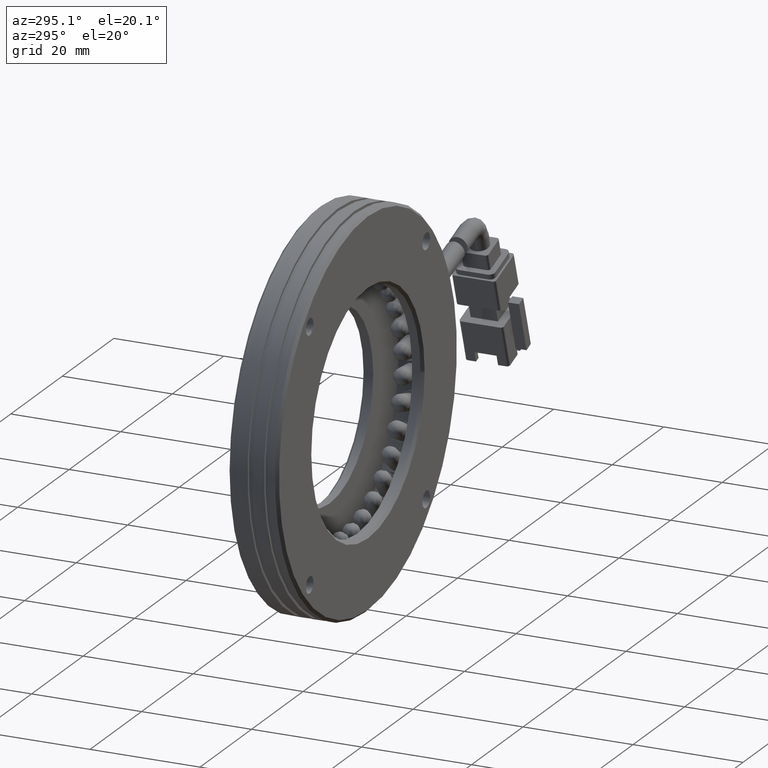
[diagram: clean part render]
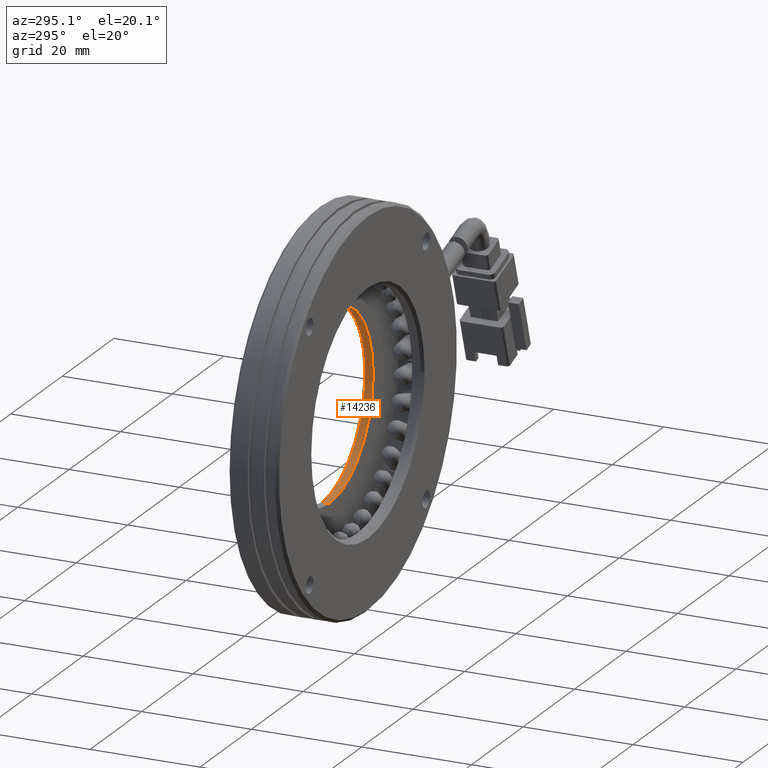
[diagram: same view with one face highlighted and labeled with its STEP entity id]
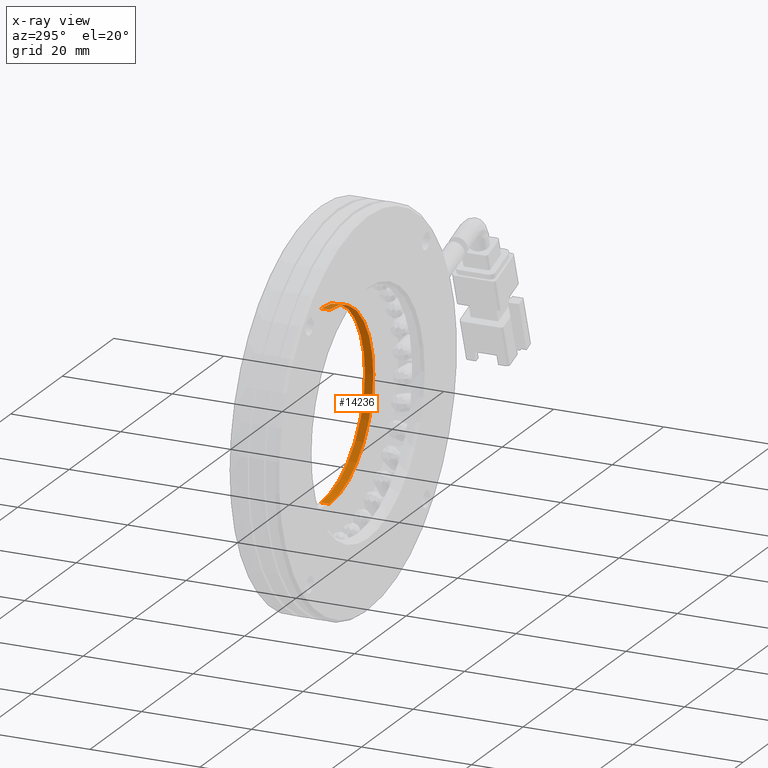
[diagram: x-ray of the same camera — body ghosted, the highlighted face saturated]
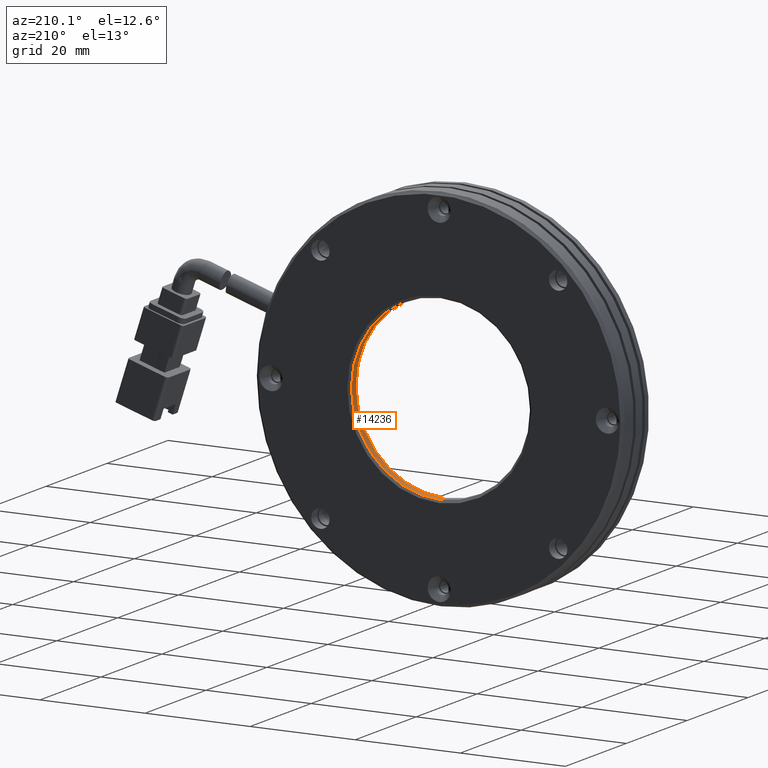
[diagram: same view with one face highlighted and labeled with its STEP entity id]
A machine part, auxiliary view. The second image highlights one B-rep face of the part: STEP entity #14236.
The next image is the same camera in x-ray: the body ghosted, the highlighted face saturated — about 5% of this face is hidden behind the body in this view.
A second angle (auxiliary view) of the same face is appended — the face is thin or edge-on in the first view.
In plain terms, the highlighted cylindrical surface (partial cylindrical patch) has radius 17 mm, axis along (-0, -1, -0).
Its self-contained STEP definition (entity closure, byte-faithful):
#438 = EDGE_LOOP ( 'NONE', ( #19173, #4761, #37555, #32285 ) ) ;
#924 = VERTEX_POINT ( 'NONE', #30244 ) ;
#1092 = AXIS2_PLACEMENT_3D ( 'NONE', #11440, #33305, #14572 ) ;
#3318 = DIRECTION ( 'NONE',  ( -0.0000000000000000000, -1.000000000000000000, -0.0000000000000000000 ) ) ;
#4761 = ORIENTED_EDGE ( 'NONE', *, *, #7389, .T. ) ;
#6420 = CARTESIAN_POINT ( 'NONE',  ( -5.709292144904342300, -67.75338872902170800, -17.00000000000002100 ) ) ;
#7023 = VECTOR ( 'NONE', #15726, 1000.000000000000000 ) ;
#7389 = EDGE_CURVE ( 'NONE', #34719, #924, #22258, .T. ) ;
#7994 = LINE ( 'NONE', #37544, #7023 ) ;
#8530 = VERTEX_POINT ( 'NONE', #27741 ) ;
#9152 = AXIS2_PLACEMENT_3D ( 'NONE', #32157, #13409, #35258 ) ;
#11440 = CARTESIAN_POINT ( 'NONE',  ( -5.709292144904342300, 12.76020291540426400, -2.081668171172168500E-014 ) ) ;
#13409 = DIRECTION ( 'NONE',  ( 0.0000000000000000000, 1.000000000000000000, 0.0000000000000000000 ) ) ;
#14236 = ADVANCED_FACE ( 'NONE', ( #39693 ), #20114, .F. ) ;
#14572 = DIRECTION ( 'NONE',  ( 0.0000000000000000000, 0.0000000000000000000, 1.000000000000000000 ) ) ;
#15726 = DIRECTION ( 'NONE',  ( -0.0000000000000000000, -1.000000000000000000, -0.0000000000000000000 ) ) ;
#18208 = LINE ( 'NONE', #6420, #25555 ) ;
#19173 = ORIENTED_EDGE ( 'NONE', *, *, #23053, .F. ) ;
#20114 = CYLINDRICAL_SURFACE ( 'NONE', #38863, 17.00000000000000000 ) ;
#20248 = DIRECTION ( 'NONE',  ( -0.0000000000000000000, -1.000000000000000000, -0.0000000000000000000 ) ) ;
#22258 = CIRCLE ( 'NONE', #1092, 17.00000000000000700 ) ;
#22785 = CIRCLE ( 'NONE', #9152, 17.00000000000000000 ) ;
#23053 = EDGE_CURVE ( 'NONE', #34719, #8530, #7994, .T. ) ;
#23574 = DIRECTION ( 'NONE',  ( 0.0000000000000000000, 0.0000000000000000000, -1.000000000000000000 ) ) ;
#25555 = VECTOR ( 'NONE', #3318, 1000.000000000000000 ) ;
#27463 = CARTESIAN_POINT ( 'NONE',  ( -5.709292144904340600, 12.76020291540426400, 16.99999999999998600 ) ) ;
#27741 = CARTESIAN_POINT ( 'NONE',  ( -5.709292144904340600, 11.26020291540426400, 16.99999999999997900 ) ) ;
#29747 = CARTESIAN_POINT ( 'NONE',  ( -5.709292144904342300, -67.75338872902170800, -2.081668171172168500E-014 ) ) ;
#30244 = CARTESIAN_POINT ( 'NONE',  ( -5.709292144904342300, 12.76020291540426400, -17.00000000000002800 ) ) ;
#30437 = VERTEX_POINT ( 'NONE', #38099 ) ;
#32157 = CARTESIAN_POINT ( 'NONE',  ( -5.709292144904342300, 11.26020291540426400, -2.081668171172168500E-014 ) ) ;
#32285 = ORIENTED_EDGE ( 'NONE', *, *, #37854, .F. ) ;
#33305 = DIRECTION ( 'NONE',  ( -0.0000000000000000000, 1.000000000000000000, -0.0000000000000000000 ) ) ;
#34719 = VERTEX_POINT ( 'NONE', #27463 ) ;
#35258 = DIRECTION ( 'NONE',  ( 0.0000000000000000000, 0.0000000000000000000, -1.000000000000000000 ) ) ;
#37544 = CARTESIAN_POINT ( 'NONE',  ( -5.709292144904340600, -67.75338872902170800, 16.99999999999997900 ) ) ;
#37555 = ORIENTED_EDGE ( 'NONE', *, *, #39233, .T. ) ;
#37854 = EDGE_CURVE ( 'NONE', #8530, #30437, #22785, .T. ) ;
#38099 = CARTESIAN_POINT ( 'NONE',  ( -5.709292144904342300, 11.26020291540426400, -17.00000000000002100 ) ) ;
#38863 = AXIS2_PLACEMENT_3D ( 'NONE', #29747, #20248, #23574 ) ;
#39233 = EDGE_CURVE ( 'NONE', #924, #30437, #18208, .T. ) ;
#39693 = FACE_OUTER_BOUND ( 'NONE', #438, .T. ) ;